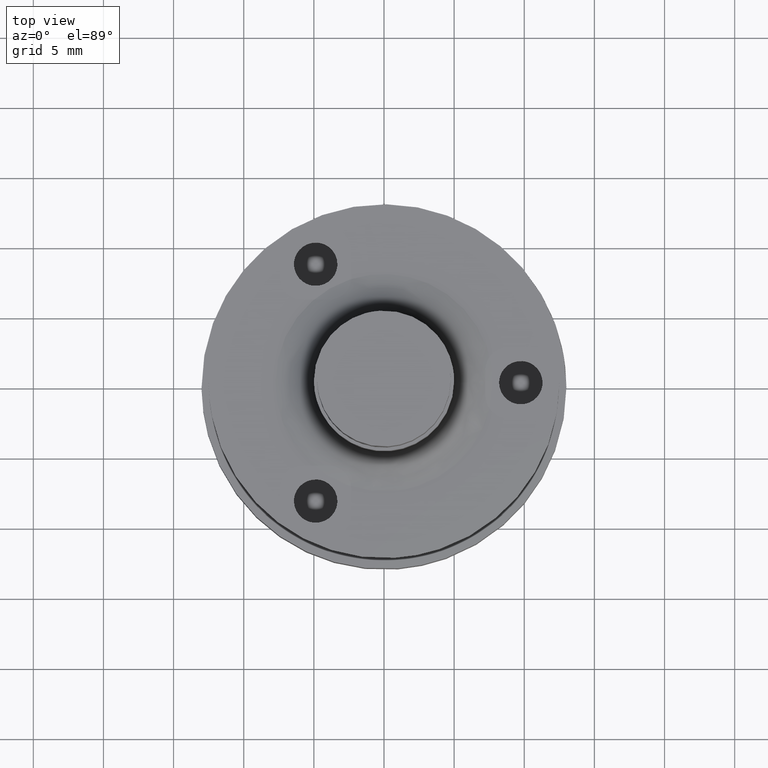
[diagram: clean part render]
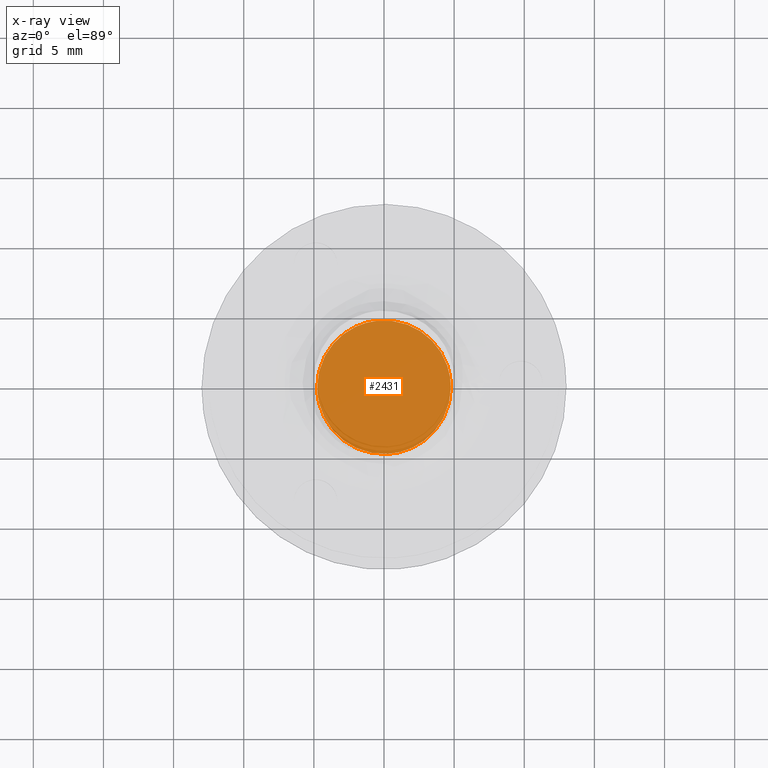
[diagram: x-ray — body ghosted, one internal face saturated and labeled with its STEP entity id]
A machine part, top view, then the same camera in x-ray: the body is ghosted and one INTERNAL B-rep face — a face not visible from any outside direction — is saturated and labeled: STEP entity #2431.
In plain terms, the highlighted face is a freeform B-spline surface patch.
Its self-contained STEP definition (entity closure, byte-faithful):
#2084=CARTESIAN_POINT('',(-0.562131301755359,4.729208670543175,-31.000000000000139));
#2085=VERTEX_POINT('',#2084);
#2086=CARTESIAN_POINT('',(4.762500000000000,0.0,-31.0));
#2087=VERTEX_POINT('',#2086);
#2088=CARTESIAN_POINT('',(-0.562131301755359,4.729208670543176,-31.000000000000131));
#2089=CARTESIAN_POINT('',(-0.282051463812791,4.762500000000000,-30.999999999999996));
#2090=CARTESIAN_POINT('',(0.0,4.762500000000000,-31.0));
#2091=CARTESIAN_POINT('',(4.762500000000000,4.762500000000000,-31.000000000000007));
#2092=CARTESIAN_POINT('',(4.762500000000000,0.0,-31.0));
#2100=(BOUNDED_CURVE()B_SPLINE_CURVE(2,(#2088,#2089,#2090,#2091,#2092),.UNSPECIFIED.,.F.,.U.)B_SPLINE_CURVE_WITH_KNOTS((3,2,3),(0.229562714405197,0.250000000000000,0.500000000000000),.UNSPECIFIED.)CURVE()GEOMETRIC_REPRESENTATION_ITEM()RATIONAL_B_SPLINE_CURVE((0.956027226341810,0.976056230553313,1.0,0.707106781186548,1.0))REPRESENTATION_ITEM(''));
#2101=EDGE_CURVE('',#2085,#2087,#2100,.T.);
#2103=CARTESIAN_POINT('',(0.290737407193583,-4.753617360497055,-30.999999999999890));
#2104=VERTEX_POINT('',#2103);
#2105=CARTESIAN_POINT('',(4.762500000000000,0.0,-31.0));
#2106=CARTESIAN_POINT('',(4.762500000000001,-4.480118556701420,-31.000000000000004));
#2107=CARTESIAN_POINT('',(0.290737407193583,-4.753617360497055,-30.999999999999886));
#2115=(BOUNDED_CURVE()B_SPLINE_CURVE(2,(#2105,#2106,#2107),.UNSPECIFIED.,.F.,.U.)B_SPLINE_CURVE_WITH_KNOTS((3,3),(0.500000000000000,0.739333189552468),.UNSPECIFIED.)CURVE()GEOMETRIC_REPRESENTATION_ITEM()RATIONAL_B_SPLINE_CURVE((1.0,0.719603726972350,0.976072528843356))REPRESENTATION_ITEM(''));
#2116=EDGE_CURVE('',#2087,#2104,#2115,.T.);
#2187=CARTESIAN_POINT('',(-4.762500000000000,0.0,-31.0));
#2188=VERTEX_POINT('',#2187);
#2189=CARTESIAN_POINT('',(-4.762500000000000,0.0,-31.0));
#2190=CARTESIAN_POINT('',(-4.762500000000002,4.229937251440731,-31.0));
#2191=CARTESIAN_POINT('',(-0.562131301755359,4.729208670543176,-31.000000000000131));
#2199=(BOUNDED_CURVE()B_SPLINE_CURVE(2,(#2189,#2190,#2191),.UNSPECIFIED.,.F.,.U.)B_SPLINE_CURVE_WITH_KNOTS((3,3),(0.0,0.229562714405197),.UNSPECIFIED.)CURVE()GEOMETRIC_REPRESENTATION_ITEM()RATIONAL_B_SPLINE_CURVE((1.0,0.731050550633235,0.956027226341810))REPRESENTATION_ITEM(''));
#2200=EDGE_CURVE('',#2188,#2085,#2199,.T.);
#2234=CARTESIAN_POINT('',(0.290737407193583,-4.753617360497055,-30.999999999999886));
#2235=CARTESIAN_POINT('',(0.145504395259761,-4.762500000000000,-31.000000000000007));
#2236=CARTESIAN_POINT('',(0.0,-4.762500000000000,-31.0));
#2237=CARTESIAN_POINT('',(-4.762500000000000,-4.762500000000000,-31.000000000000007));
#2238=CARTESIAN_POINT('',(-4.762500000000000,0.0,-31.0));
#2246=(BOUNDED_CURVE()B_SPLINE_CURVE(2,(#2234,#2235,#2236,#2237,#2238),.UNSPECIFIED.,.F.,.U.)B_SPLINE_CURVE_WITH_KNOTS((3,2,3),(0.739333189552468,0.750000000000000,1.0),.UNSPECIFIED.)CURVE()GEOMETRIC_REPRESENTATION_ITEM()RATIONAL_B_SPLINE_CURVE((0.976072528843356,0.987503054214197,1.0,0.707106781186548,1.0))REPRESENTATION_ITEM(''));
#2247=EDGE_CURVE('',#2104,#2188,#2246,.T.);
#2420=CARTESIAN_POINT('',(-5.238273518680941,-5.238157995349594,-31.0));
#2421=CARTESIAN_POINT('',(5.238273263200533,-5.238157995349594,-31.0));
#2422=CARTESIAN_POINT('',(-5.238273518680941,5.238187120116182,-31.0));
#2423=CARTESIAN_POINT('',(5.238273263200533,5.238187120116182,-31.0));
#2424=B_SPLINE_SURFACE_WITH_KNOTS('',1,1,((#2420,#2422),(#2421,#2423)),.UNSPECIFIED.,.F.,.F.,.U.,(2,2),(2,2),(0.0,10.476546781881471),(0.0,10.476345115465779),.UNSPECIFIED.);
#2425=ORIENTED_EDGE('',*,*,#2247,.F.);
#2426=ORIENTED_EDGE('',*,*,#2116,.F.);
#2427=ORIENTED_EDGE('',*,*,#2101,.F.);
#2428=ORIENTED_EDGE('',*,*,#2200,.F.);
#2429=EDGE_LOOP('',(#2425,#2426,#2427,#2428));
#2430=FACE_OUTER_BOUND('',#2429,.T.);
#2431=ADVANCED_FACE('',(#2430),#2424,.T.);